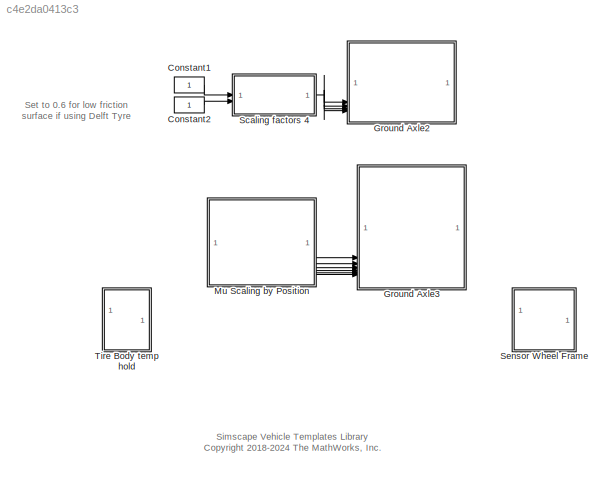
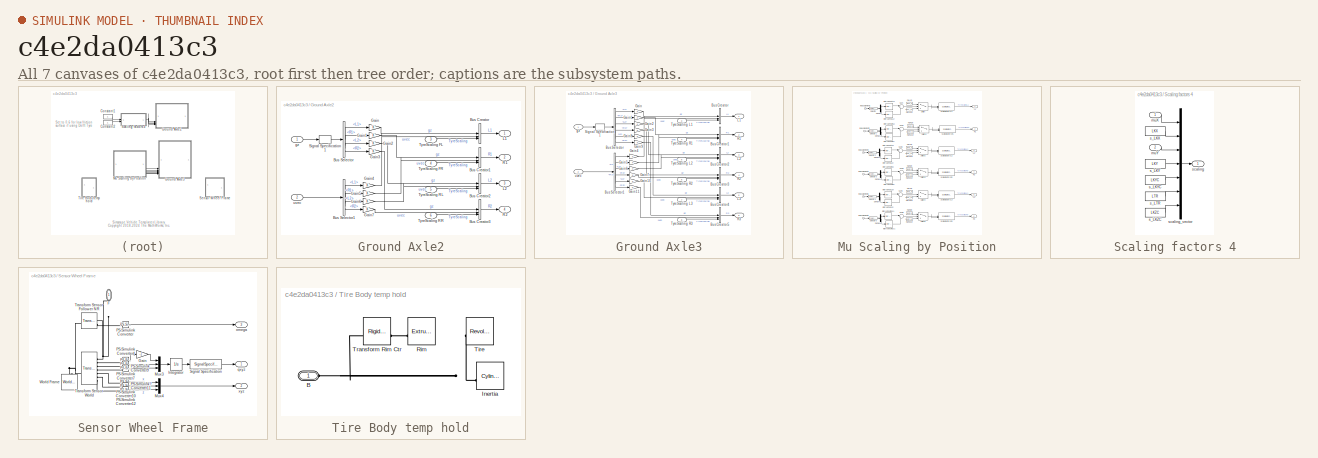
[diagram: thumbnail index - all 7 canvases of the model, root first then tree order]
MODEL slx_c4e2da0413c3
KIND library
CONFIG AbsTol = auto
CONFIG EnableMultiTasking = off
CONFIG FixedStep = auto
CONFIG MaxStep = auto
CONFIG MinStep = auto
CONFIG RelTol = 1e-3
CONFIG SampleTimeConstraint = Unconstrained
CONFIG SolverName = VariableStepAuto
CONFIG StartTime = 0.0
CONFIG StopTime = 10.0
BLOCK [Constant] Constant1
  NameLocation = top
BLOCK [Constant] Constant2
BLOCK [SubSystem] Ground Axle2
BLOCK [BusCreator] Ground Axle2/Bus Creator
  DisplayOption = bar
  InheritFromInputs = on
  Inputs = 3
BLOCK [BusCreator] Ground Axle2/Bus Creator1
  DisplayOption = bar
  InheritFromInputs = on
  Inputs = 3
BLOCK [BusCreator] Ground Axle2/Bus Creator2
  DisplayOption = bar
  InheritFromInputs = on
  Inputs = 3
BLOCK [BusCreator] Ground Axle2/Bus Creator3
  DisplayOption = bar
  InheritFromInputs = on
  Inputs = 3
BLOCK [BusSelector] Ground Axle2/Bus Selector
  OutputSignals = L1,R1,L2,R2
BLOCK [BusSelector] Ground Axle2/Bus Selector1
  OutputSignals = L1,R1,L2,R2
BLOCK [Gain] Ground Axle2/Gain
BLOCK [Gain] Ground Axle2/Gain1
BLOCK [Gain] Ground Axle2/Gain2
BLOCK [Gain] Ground Axle2/Gain3
BLOCK [Gain] Ground Axle2/Gain4
BLOCK [Gain] Ground Axle2/Gain5
BLOCK [Gain] Ground Axle2/Gain6
BLOCK [Gain] Ground Axle2/Gain7
BLOCK [Outport] Ground Axle2/L1
  VectorParamsAs1DForOutWhenUnconnected = off
BLOCK [Outport] Ground Axle2/L2
  Port = 3
  VectorParamsAs1DForOutWhenUnconnected = off
BLOCK [Outport] Ground Axle2/R1
  Port = 2
  VectorParamsAs1DForOutWhenUnconnected = off
BLOCK [Outport] Ground Axle2/R2
  Port = 4
  VectorParamsAs1DForOutWhenUnconnected = off
BLOCK [SignalSpecification] Ground Axle2/Signal Specification1
  Unit = m
BLOCK [Inport] Ground Axle2/TyreScaling FL
  Port = 3
BLOCK [Inport] Ground Axle2/TyreScaling FR
  Port = 4
BLOCK [Inport] Ground Axle2/TyreScaling RL
  Port = 5
BLOCK [Inport] Ground Axle2/TyreScaling RR
  Port = 6
BLOCK [Inport] Ground Axle2/gz
BLOCK [Inport] Ground Axle2/uvec
  Port = 2
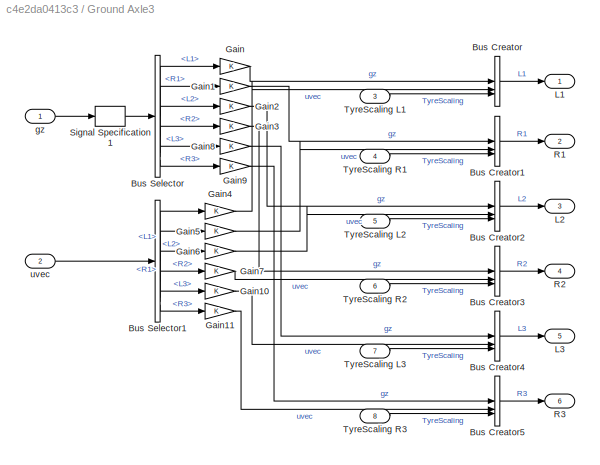
BLOCK [SubSystem] Ground Axle3
BLOCK [BusCreator] Ground Axle3/Bus Creator
  DisplayOption = bar
  InheritFromInputs = on
  Inputs = 3
BLOCK [BusCreator] Ground Axle3/Bus Creator1
  DisplayOption = bar
  InheritFromInputs = on
  Inputs = 3
BLOCK [BusCreator] Ground Axle3/Bus Creator2
  DisplayOption = bar
  InheritFromInputs = on
  Inputs = 3
BLOCK [BusCreator] Ground Axle3/Bus Creator3
  DisplayOption = bar
  InheritFromInputs = on
  Inputs = 3
BLOCK [BusCreator] Ground Axle3/Bus Creator4
  DisplayOption = bar
  InheritFromInputs = on
  Inputs = 3
BLOCK [BusCreator] Ground Axle3/Bus Creator5
  DisplayOption = bar
  InheritFromInputs = on
  Inputs = 3
BLOCK [BusSelector] Ground Axle3/Bus Selector
  OutputSignals = L1,R1,L2,R2,L3,R3
BLOCK [BusSelector] Ground Axle3/Bus Selector1
  OutputSignals = L1,R1,L2,R2,L3,R3
BLOCK [Gain] Ground Axle3/Gain
BLOCK [Gain] Ground Axle3/Gain1
BLOCK [Gain] Ground Axle3/Gain10
BLOCK [Gain] Ground Axle3/Gain11
BLOCK [Gain] Ground Axle3/Gain2
BLOCK [Gain] Ground Axle3/Gain3
BLOCK [Gain] Ground Axle3/Gain4
BLOCK [Gain] Ground Axle3/Gain5
BLOCK [Gain] Ground Axle3/Gain6
BLOCK [Gain] Ground Axle3/Gain7
BLOCK [Gain] Ground Axle3/Gain8
BLOCK [Gain] Ground Axle3/Gain9
BLOCK [Outport] Ground Axle3/L1
  VectorParamsAs1DForOutWhenUnconnected = off
BLOCK [Outport] Ground Axle3/L2
  Port = 3
  VectorParamsAs1DForOutWhenUnconnected = off
BLOCK [Outport] Ground Axle3/L3
  Port = 5
  VectorParamsAs1DForOutWhenUnconnected = off
BLOCK [Outport] Ground Axle3/R1
  Port = 2
  VectorParamsAs1DForOutWhenUnconnected = off
BLOCK [Outport] Ground Axle3/R2
  Port = 4
  VectorParamsAs1DForOutWhenUnconnected = off
BLOCK [Outport] Ground Axle3/R3
  Port = 6
  VectorParamsAs1DForOutWhenUnconnected = off
BLOCK [SignalSpecification] Ground Axle3/Signal Specification1
  Unit = m
BLOCK [Inport] Ground Axle3/TyreScaling L1
  Port = 3
BLOCK [Inport] Ground Axle3/TyreScaling L2
  Port = 5
BLOCK [Inport] Ground Axle3/TyreScaling L3
  Port = 7
BLOCK [Inport] Ground Axle3/TyreScaling R1
  Port = 4
BLOCK [Inport] Ground Axle3/TyreScaling R2
  Port = 6
BLOCK [Inport] Ground Axle3/TyreScaling R3
  Port = 8
BLOCK [Inport] Ground Axle3/gz
BLOCK [Inport] Ground Axle3/uvec
  Port = 2
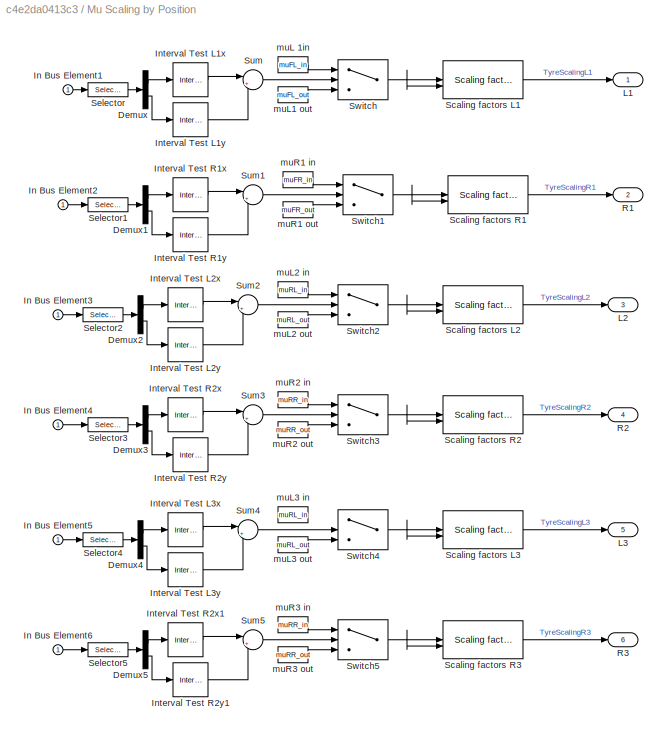
BLOCK [SubSystem] Mu Scaling by Position
BLOCK [Demux] Mu Scaling by Position/Demux
  Outputs = 2
BLOCK [Demux] Mu Scaling by Position/Demux1
  Outputs = 2
BLOCK [Demux] Mu Scaling by Position/Demux2
  Outputs = 2
BLOCK [Demux] Mu Scaling by Position/Demux3
  Outputs = 2
BLOCK [Demux] Mu Scaling by Position/Demux4
  Outputs = 2
BLOCK [Demux] Mu Scaling by Position/Demux5
  Outputs = 2
BLOCK [Inport] Mu Scaling by Position/In Bus Element1
BLOCK [Inport] Mu Scaling by Position/In Bus Element2
BLOCK [Inport] Mu Scaling by Position/In Bus Element3
BLOCK [Inport] Mu Scaling by Position/In Bus Element4
BLOCK [Inport] Mu Scaling by Position/In Bus Element5
BLOCK [Inport] Mu Scaling by Position/In Bus Element6
BLOCK [Reference] Mu Scaling by Position/Interval Test L1x  REF=simulink/Logic and Bit
Operations/Interval Test
  NameLocation = top
  SourceBlock = simulink/Logic and Bit\nOperations/Interval Test
  SourceType = Interval Test
BLOCK [Reference] Mu Scaling by Position/Interval Test L1y  REF=simulink/Logic and Bit
Operations/Interval Test
  SourceBlock = simulink/Logic and Bit\nOperations/Interval Test
  SourceType = Interval Test
BLOCK [Reference] Mu Scaling by Position/Interval Test L2x  REF=simulink/Logic and Bit
Operations/Interval Test
  NameLocation = top
  SourceBlock = simulink/Logic and Bit\nOperations/Interval Test
  SourceType = Interval Test
BLOCK [Reference] Mu Scaling by Position/Interval Test L2y  REF=simulink/Logic and Bit
Operations/Interval Test
  SourceBlock = simulink/Logic and Bit\nOperations/Interval Test
  SourceType = Interval Test
BLOCK [Reference] Mu Scaling by Position/Interval Test L3x  REF=simulink/Logic and Bit
Operations/Interval Test
  NameLocation = top
  SourceBlock = simulink/Logic and Bit\nOperations/Interval Test
  SourceType = Interval Test
BLOCK [Reference] Mu Scaling by Position/Interval Test L3y  REF=simulink/Logic and Bit
Operations/Interval Test
  SourceBlock = simulink/Logic and Bit\nOperations/Interval Test
  SourceType = Interval Test
BLOCK [Reference] Mu Scaling by Position/Interval Test R1x  REF=simulink/Logic and Bit
Operations/Interval Test
  NameLocation = top
  SourceBlock = simulink/Logic and Bit\nOperations/Interval Test
  SourceType = Interval Test
BLOCK [Reference] Mu Scaling by Position/Interval Test R1y  REF=simulink/Logic and Bit
Operations/Interval Test
  SourceBlock = simulink/Logic and Bit\nOperations/Interval Test
  SourceType = Interval Test
BLOCK [Reference] Mu Scaling by Position/Interval Test R2x  REF=simulink/Logic and Bit
Operations/Interval Test
  NameLocation = top
  SourceBlock = simulink/Logic and Bit\nOperations/Interval Test
  SourceType = Interval Test
BLOCK [Reference] Mu Scaling by Position/Interval Test R2x1  REF=simulink/Logic and Bit
Operations/Interval Test
  NameLocation = top
  SourceBlock = simulink/Logic and Bit\nOperations/Interval Test
  SourceType = Interval Test
BLOCK [Reference] Mu Scaling by Position/Interval Test R2y  REF=simulink/Logic and Bit
Operations/Interval Test
  SourceBlock = simulink/Logic and Bit\nOperations/Interval Test
  SourceType = Interval Test
BLOCK [Reference] Mu Scaling by Position/Interval Test R2y1  REF=simulink/Logic and Bit
Operations/Interval Test
  SourceBlock = simulink/Logic and Bit\nOperations/Interval Test
  SourceType = Interval Test
BLOCK [Outport] Mu Scaling by Position/L1
  VectorParamsAs1DForOutWhenUnconnected = off
BLOCK [Outport] Mu Scaling by Position/L2
  Port = 3
  VectorParamsAs1DForOutWhenUnconnected = off
BLOCK [Outport] Mu Scaling by Position/L3
  Port = 5
  VectorParamsAs1DForOutWhenUnconnected = off
BLOCK [Outport] Mu Scaling by Position/R1
  Port = 2
  VectorParamsAs1DForOutWhenUnconnected = off
BLOCK [Outport] Mu Scaling by Position/R2
  Port = 4
  VectorParamsAs1DForOutWhenUnconnected = off
BLOCK [Outport] Mu Scaling by Position/R3
  Port = 6
  VectorParamsAs1DForOutWhenUnconnected = off
BLOCK [Reference] Mu Scaling by Position/Scaling factors L1  REF=$bdroot/Scaling factors 4
  SourceBlock = $bdroot/Scaling factors 4
BLOCK [Reference] Mu Scaling by Position/Scaling factors L2  REF=$bdroot/Scaling factors 4
  SourceBlock = $bdroot/Scaling factors 4
BLOCK [Reference] Mu Scaling by Position/Scaling factors L3  REF=$bdroot/Scaling factors 4
  SourceBlock = $bdroot/Scaling factors 4
BLOCK [Reference] Mu Scaling by Position/Scaling factors R1  REF=$bdroot/Scaling factors 4
  SourceBlock = $bdroot/Scaling factors 4
BLOCK [Reference] Mu Scaling by Position/Scaling factors R2  REF=$bdroot/Scaling factors 4
  SourceBlock = $bdroot/Scaling factors 4
BLOCK [Reference] Mu Scaling by Position/Scaling factors R3  REF=$bdroot/Scaling factors 4
  SourceBlock = $bdroot/Scaling factors 4
BLOCK [Selector] Mu Scaling by Position/Selector
  IndexOptions = Index vector (dialog)
  Indices = [1 2]
  InputPortWidth = 3
  OutputSizes = 1
BLOCK [Selector] Mu Scaling by Position/Selector1
  IndexOptions = Index vector (dialog)
  Indices = [1 2]
  InputPortWidth = 3
  OutputSizes = 1
BLOCK [Selector] Mu Scaling by Position/Selector2
  IndexOptions = Index vector (dialog)
  Indices = [1 2]
  InputPortWidth = 3
  OutputSizes = 1
BLOCK [Selector] Mu Scaling by Position/Selector3
  IndexOptions = Index vector (dialog)
  Indices = [1 2]
  InputPortWidth = 3
  OutputSizes = 1
BLOCK [Selector] Mu Scaling by Position/Selector4
  IndexOptions = Index vector (dialog)
  Indices = [1 2]
  InputPortWidth = 3
  OutputSizes = 1
BLOCK [Selector] Mu Scaling by Position/Selector5
  IndexOptions = Index vector (dialog)
  Indices = [1 2]
  InputPortWidth = 3
  OutputSizes = 1
BLOCK [Sum] Mu Scaling by Position/Sum
  Inputs = |++
BLOCK [Sum] Mu Scaling by Position/Sum1
  Inputs = |++
BLOCK [Sum] Mu Scaling by Position/Sum2
  Inputs = |++
BLOCK [Sum] Mu Scaling by Position/Sum3
  Inputs = |++
BLOCK [Sum] Mu Scaling by Position/Sum4
  Inputs = |++
BLOCK [Sum] Mu Scaling by Position/Sum5
  Inputs = |++
BLOCK [Switch] Mu Scaling by Position/Switch
  Criteria = u2 > Threshold
  InputSameDT = off
  SaturateOnIntegerOverflow = off
  Threshold = 1
  ZeroCross = off
BLOCK [Switch] Mu Scaling by Position/Switch1
  Criteria = u2 > Threshold
  InputSameDT = off
  SaturateOnIntegerOverflow = off
  Threshold = 1
BLOCK [Switch] Mu Scaling by Position/Switch2
  Criteria = u2 > Threshold
  InputSameDT = off
  SaturateOnIntegerOverflow = off
  Threshold = 1
BLOCK [Switch] Mu Scaling by Position/Switch3
  Criteria = u2 > Threshold
  InputSameDT = off
  SaturateOnIntegerOverflow = off
  Threshold = 1
BLOCK [Switch] Mu Scaling by Position/Switch4
  Criteria = u2 > Threshold
  InputSameDT = off
  SaturateOnIntegerOverflow = off
  Threshold = 1
BLOCK [Switch] Mu Scaling by Position/Switch5
  Criteria = u2 > Threshold
  InputSameDT = off
  SaturateOnIntegerOverflow = off
  Threshold = 1
BLOCK [Constant] Mu Scaling by Position/muL 1in
  NameLocation = top
  Value = muFL_in
BLOCK [Constant] Mu Scaling by Position/muL1 out
  Value = muFL_out
BLOCK [Constant] Mu Scaling by Position/muL2 in
  NameLocation = top
  Value = muRL_in
BLOCK [Constant] Mu Scaling by Position/muL2 out
  Value = muRL_out
BLOCK [Constant] Mu Scaling by Position/muL3 in
  NameLocation = top
  Value = muRL_in
BLOCK [Constant] Mu Scaling by Position/muL3 out
  Value = muRL_out
BLOCK [Constant] Mu Scaling by Position/muR1 in
  NameLocation = top
  Value = muFR_in
BLOCK [Constant] Mu Scaling by Position/muR1 out
  Value = muFR_out
BLOCK [Constant] Mu Scaling by Position/muR2 in
  NameLocation = top
  Value = muRR_in
BLOCK [Constant] Mu Scaling by Position/muR2 out
  Value = muRR_out
BLOCK [Constant] Mu Scaling by Position/muR3 in
  NameLocation = top
  Value = muRR_in
BLOCK [Constant] Mu Scaling by Position/muR3 out
  Value = muRR_out
BLOCK [SubSystem] Scaling factors 4
BLOCK [Inport] Scaling factors 4/muX
BLOCK [Inport] Scaling factors 4/muY
  Port = 2
BLOCK [Constant] Scaling factors 4/s_LKX
  Value = LKX
BLOCK [Constant] Scaling factors 4/s_LKY
  Value = LKY
BLOCK [Constant] Scaling factors 4/s_LKYC
  Value = LKYC
BLOCK [Constant] Scaling factors 4/s_LKZC
  Value = LKZC
BLOCK [Constant] Scaling factors 4/s_LTR
  Value = LTR
BLOCK [Outport] Scaling factors 4/scaling
  VectorParamsAs1DForOutWhenUnconnected = off
BLOCK [Mux] Scaling factors 4/scaling_vector
  DisplayOption = bar
  Inputs = 7
BLOCK [SubSystem] Sensor Wheel Frame
BLOCK [PMIOPort] Sensor Wheel Frame/F
  NameLocation = left
  Side = Left
BLOCK [Gain] Sensor Wheel Frame/Gain
  Gain = -1
  NameLocation = top
BLOCK [Integrator] Sensor Wheel Frame/Integrator
  WrappedStateLowerValue = 0
  WrappedStateUpperValue = 2*pi
BLOCK [Mux] Sensor Wheel Frame/Mux3
  DisplayOption = bar
  Inputs = 3
BLOCK [Mux] Sensor Wheel Frame/Mux4
  DisplayOption = bar
  Inputs = 3
BLOCK [Reference] Sensor Wheel Frame/PS-Simulink Converter  REF=nesl_utility/PS-Simulink
Converter
  SourceBlock = nesl_utility/PS-Simulink\nConverter
  SourceType = PS-Simulink\nConverter
BLOCK [Reference] Sensor Wheel Frame/PS-Simulink Converter10  REF=nesl_utility/PS-Simulink
Converter
  SourceBlock = nesl_utility/PS-Simulink\nConverter
  SourceType = PS-Simulink\nConverter
BLOCK [Reference] Sensor Wheel Frame/PS-Simulink Converter11  REF=nesl_utility/PS-Simulink
Converter
  SourceBlock = nesl_utility/PS-Simulink\nConverter
  SourceType = PS-Simulink\nConverter
BLOCK [Reference] Sensor Wheel Frame/PS-Simulink Converter12  REF=nesl_utility/PS-Simulink
Converter
  SourceBlock = nesl_utility/PS-Simulink\nConverter
  SourceType = PS-Simulink\nConverter
BLOCK [Reference] Sensor Wheel Frame/PS-Simulink Converter4  REF=nesl_utility/PS-Simulink
Converter
  SourceBlock = nesl_utility/PS-Simulink\nConverter
  SourceType = PS-Simulink\nConverter
BLOCK [Reference] Sensor Wheel Frame/PS-Simulink Converter7  REF=nesl_utility/PS-Simulink
Converter
  SourceBlock = nesl_utility/PS-Simulink\nConverter
  SourceType = PS-Simulink\nConverter
BLOCK [Reference] Sensor Wheel Frame/PS-Simulink Converter9  REF=nesl_utility/PS-Simulink
Converter
  SourceBlock = nesl_utility/PS-Simulink\nConverter
  SourceType = PS-Simulink\nConverter
BLOCK [SignalSpecification] Sensor Wheel Frame/Signal Specification
  Unit = rad
BLOCK [Reference] Sensor Wheel Frame/Transform Sensor Follower NR  REF=sm_lib/Frames and
Transforms/Transform
Sensor
  SourceBlock = sm_lib/Frames and\nTransforms/Transform\nSensor
  SourceType = Transform\nSensor
BLOCK [Reference] Sensor Wheel Frame/Transform Sensor World  REF=sm_lib/Frames and
Transforms/Transform
Sensor
  SourceBlock = sm_lib/Frames and\nTransforms/Transform\nSensor
  SourceType = Transform\nSensor
BLOCK [Reference] Sensor Wheel Frame/World Frame  REF=sm_lib/Frames and
Transforms/World Frame
  NameLocation = right
  SourceBlock = sm_lib/Frames and\nTransforms/World Frame
  SourceType = World Frame
BLOCK [Outport] Sensor Wheel Frame/omega
  Port = 3
  VectorParamsAs1DForOutWhenUnconnected = off
BLOCK [Outport] Sensor Wheel Frame/qxyz
  VectorParamsAs1DForOutWhenUnconnected = off
BLOCK [Outport] Sensor Wheel Frame/xyz
  Port = 2
  VectorParamsAs1DForOutWhenUnconnected = off
BLOCK [SubSystem] Tire Body temp hold
BLOCK [PMIOPort] Tire Body temp hold/B
  Side = Left
BLOCK [Reference] Tire Body temp hold/Inertia  REF=sm_lib/Body Elements/Cylindrical Solid
  SourceBlock = sm_lib/Body Elements/Cylindrical Solid
  SourceType = Cylindrical Solid
BLOCK [Reference] Tire Body temp hold/Rim  REF=sm_lib/Body Elements/Extruded Solid
  SourceBlock = sm_lib/Body Elements/Extruded Solid
  SourceType = Extruded Solid
BLOCK [Reference] Tire Body temp hold/Tire  REF=sm_lib/Body Elements/Revolved Solid
  SourceBlock = sm_lib/Body Elements/Revolved Solid
  SourceType = Revolved Solid
BLOCK [Reference] Tire Body temp hold/Transform Rim Ctr  REF=sm_lib/Frames and
Transforms/Rigid
Transform
  SourceBlock = sm_lib/Frames and\nTransforms/Rigid\nTransform
  SourceType = Rigid\nTransform
ANNOTATION (root): Set to 0.6 for low friction surface if using Delft Tyre
ANNOTATION (root): Simscape Vehicle Templates Library <copyright redacted>
LINE Constant1:1 -> Scaling factors 4:1
LINE Constant2:1 -> Scaling factors 4:2
LINE Ground Axle2/Bus Creator1:1 -> Ground Axle2/R1:1
LINE Ground Axle2/Bus Creator2:1 -> Ground Axle2/L2:1
LINE Ground Axle2/Bus Creator3:1 -> Ground Axle2/R2:1
LINE Ground Axle2/Bus Creator:1 -> Ground Axle2/L1:1
LINE Ground Axle2/Bus Selector1:1 -> Ground Axle2/Gain4:1
LINE Ground Axle2/Bus Selector1:2 -> Ground Axle2/Gain5:1
LINE Ground Axle2/Bus Selector1:3 -> Ground Axle2/Gain6:1
LINE Ground Axle2/Bus Selector1:4 -> Ground Axle2/Gain7:1
LINE Ground Axle2/Bus Selector:1 -> Ground Axle2/Gain:1
LINE Ground Axle2/Bus Selector:2 -> Ground Axle2/Gain1:1
LINE Ground Axle2/Bus Selector:3 -> Ground Axle2/Gain2:1
LINE Ground Axle2/Bus Selector:4 -> Ground Axle2/Gain3:1
LINE Ground Axle2/Gain1:1 -> Ground Axle2/Bus Creator1:1
LINE Ground Axle2/Gain2:1 -> Ground Axle2/Bus Creator2:1
LINE Ground Axle2/Gain3:1 -> Ground Axle2/Bus Creator3:1
LINE Ground Axle2/Gain4:1 -> Ground Axle2/Bus Creator:2
LINE Ground Axle2/Gain5:1 -> Ground Axle2/Bus Creator1:2
LINE Ground Axle2/Gain6:1 -> Ground Axle2/Bus Creator2:2
LINE Ground Axle2/Gain7:1 -> Ground Axle2/Bus Creator3:2
LINE Ground Axle2/Gain:1 -> Ground Axle2/Bus Creator:1
LINE Ground Axle2/Signal Specification1:1 -> Ground Axle2/Bus Selector:1
LINE Ground Axle2/TyreScaling FL:1 -> Ground Axle2/Bus Creator:3
LINE Ground Axle2/TyreScaling FR:1 -> Ground Axle2/Bus Creator1:3
LINE Ground Axle2/TyreScaling RL:1 -> Ground Axle2/Bus Creator2:3
LINE Ground Axle2/TyreScaling RR:1 -> Ground Axle2/Bus Creator3:3
LINE Ground Axle2/gz:1 -> Ground Axle2/Signal Specification1:1
LINE Ground Axle2/uvec:1 -> Ground Axle2/Bus Selector1:1
LINE Ground Axle3/Bus Creator1:1 -> Ground Axle3/R1:1
LINE Ground Axle3/Bus Creator2:1 -> Ground Axle3/L2:1
LINE Ground Axle3/Bus Creator3:1 -> Ground Axle3/R2:1
LINE Ground Axle3/Bus Creator4:1 -> Ground Axle3/L3:1
LINE Ground Axle3/Bus Creator5:1 -> Ground Axle3/R3:1
LINE Ground Axle3/Bus Creator:1 -> Ground Axle3/L1:1
LINE Ground Axle3/Bus Selector1:1 -> Ground Axle3/Gain4:1
LINE Ground Axle3/Bus Selector1:2 -> Ground Axle3/Gain5:1
LINE Ground Axle3/Bus Selector1:3 -> Ground Axle3/Gain6:1
LINE Ground Axle3/Bus Selector1:4 -> Ground Axle3/Gain7:1
LINE Ground Axle3/Bus Selector1:5 -> Ground Axle3/Gain10:1
LINE Ground Axle3/Bus Selector1:6 -> Ground Axle3/Gain11:1
LINE Ground Axle3/Bus Selector:1 -> Ground Axle3/Gain:1
LINE Ground Axle3/Bus Selector:2 -> Ground Axle3/Gain1:1
LINE Ground Axle3/Bus Selector:3 -> Ground Axle3/Gain2:1
LINE Ground Axle3/Bus Selector:4 -> Ground Axle3/Gain3:1
LINE Ground Axle3/Bus Selector:5 -> Ground Axle3/Gain8:1
LINE Ground Axle3/Bus Selector:6 -> Ground Axle3/Gain9:1
LINE Ground Axle3/Gain10:1 -> Ground Axle3/Bus Creator4:2
LINE Ground Axle3/Gain11:1 -> Ground Axle3/Bus Creator5:2
LINE Ground Axle3/Gain1:1 -> Ground Axle3/Bus Creator1:1
LINE Ground Axle3/Gain2:1 -> Ground Axle3/Bus Creator2:1
LINE Ground Axle3/Gain3:1 -> Ground Axle3/Bus Creator3:1
LINE Ground Axle3/Gain4:1 -> Ground Axle3/Bus Creator:2
LINE Ground Axle3/Gain5:1 -> Ground Axle3/Bus Creator1:2
LINE Ground Axle3/Gain6:1 -> Ground Axle3/Bus Creator2:2
LINE Ground Axle3/Gain7:1 -> Ground Axle3/Bus Creator3:2
LINE Ground Axle3/Gain8:1 -> Ground Axle3/Bus Creator4:1
LINE Ground Axle3/Gain9:1 -> Ground Axle3/Bus Creator5:1
LINE Ground Axle3/Gain:1 -> Ground Axle3/Bus Creator:1
LINE Ground Axle3/Signal Specification1:1 -> Ground Axle3/Bus Selector:1
LINE Ground Axle3/TyreScaling L1:1 -> Ground Axle3/Bus Creator:3
LINE Ground Axle3/TyreScaling L2:1 -> Ground Axle3/Bus Creator2:3
LINE Ground Axle3/TyreScaling L3:1 -> Ground Axle3/Bus Creator4:3
LINE Ground Axle3/TyreScaling R1:1 -> Ground Axle3/Bus Creator1:3
LINE Ground Axle3/TyreScaling R2:1 -> Ground Axle3/Bus Creator3:3
LINE Ground Axle3/TyreScaling R3:1 -> Ground Axle3/Bus Creator5:3
LINE Ground Axle3/gz:1 -> Ground Axle3/Signal Specification1:1
LINE Ground Axle3/uvec:1 -> Ground Axle3/Bus Selector1:1
LINE Mu Scaling by Position/Demux1:1 -> Mu Scaling by Position/Interval Test R1x:1
LINE Mu Scaling by Position/Demux1:2 -> Mu Scaling by Position/Interval Test R1y:1
LINE Mu Scaling by Position/Demux2:1 -> Mu Scaling by Position/Interval Test L2x:1
LINE Mu Scaling by Position/Demux2:2 -> Mu Scaling by Position/Interval Test L2y:1
LINE Mu Scaling by Position/Demux3:1 -> Mu Scaling by Position/Interval Test R2x:1
LINE Mu Scaling by Position/Demux3:2 -> Mu Scaling by Position/Interval Test R2y:1
LINE Mu Scaling by Position/Demux4:1 -> Mu Scaling by Position/Interval Test L3x:1
LINE Mu Scaling by Position/Demux4:2 -> Mu Scaling by Position/Interval Test L3y:1
LINE Mu Scaling by Position/Demux5:1 -> Mu Scaling by Position/Interval Test R2x1:1
LINE Mu Scaling by Position/Demux5:2 -> Mu Scaling by Position/Interval Test R2y1:1
LINE Mu Scaling by Position/Demux:1 -> Mu Scaling by Position/Interval Test L1x:1
LINE Mu Scaling by Position/Demux:2 -> Mu Scaling by Position/Interval Test L1y:1
LINE Mu Scaling by Position/In Bus Element1:1 -> Mu Scaling by Position/Selector:1
LINE Mu Scaling by Position/In Bus Element2:1 -> Mu Scaling by Position/Selector1:1
LINE Mu Scaling by Position/In Bus Element3:1 -> Mu Scaling by Position/Selector2:1
LINE Mu Scaling by Position/In Bus Element4:1 -> Mu Scaling by Position/Selector3:1
LINE Mu Scaling by Position/In Bus Element5:1 -> Mu Scaling by Position/Selector4:1
LINE Mu Scaling by Position/In Bus Element6:1 -> Mu Scaling by Position/Selector5:1
LINE Mu Scaling by Position/Interval Test L1x:1 -> Mu Scaling by Position/Sum:1
LINE Mu Scaling by Position/Interval Test L1y:1 -> Mu Scaling by Position/Sum:2
LINE Mu Scaling by Position/Interval Test L2x:1 -> Mu Scaling by Position/Sum2:1
LINE Mu Scaling by Position/Interval Test L2y:1 -> Mu Scaling by Position/Sum2:2
LINE Mu Scaling by Position/Interval Test L3x:1 -> Mu Scaling by Position/Sum4:1
LINE Mu Scaling by Position/Interval Test L3y:1 -> Mu Scaling by Position/Sum4:2
LINE Mu Scaling by Position/Interval Test R1x:1 -> Mu Scaling by Position/Sum1:1
LINE Mu Scaling by Position/Interval Test R1y:1 -> Mu Scaling by Position/Sum1:2
LINE Mu Scaling by Position/Interval Test R2x1:1 -> Mu Scaling by Position/Sum5:1
LINE Mu Scaling by Position/Interval Test R2x:1 -> Mu Scaling by Position/Sum3:1
LINE Mu Scaling by Position/Interval Test R2y1:1 -> Mu Scaling by Position/Sum5:2
LINE Mu Scaling by Position/Interval Test R2y:1 -> Mu Scaling by Position/Sum3:2
LINE Mu Scaling by Position/Scaling factors L1:1 -> Mu Scaling by Position/L1:1
LINE Mu Scaling by Position/Scaling factors L2:1 -> Mu Scaling by Position/L2:1
LINE Mu Scaling by Position/Scaling factors L3:1 -> Mu Scaling by Position/L3:1
LINE Mu Scaling by Position/Scaling factors R1:1 -> Mu Scaling by Position/R1:1
LINE Mu Scaling by Position/Scaling factors R2:1 -> Mu Scaling by Position/R2:1
LINE Mu Scaling by Position/Scaling factors R3:1 -> Mu Scaling by Position/R3:1
LINE Mu Scaling by Position/Selector1:1 -> Mu Scaling by Position/Demux1:1
LINE Mu Scaling by Position/Selector2:1 -> Mu Scaling by Position/Demux2:1
LINE Mu Scaling by Position/Selector3:1 -> Mu Scaling by Position/Demux3:1
LINE Mu Scaling by Position/Selector4:1 -> Mu Scaling by Position/Demux4:1
LINE Mu Scaling by Position/Selector5:1 -> Mu Scaling by Position/Demux5:1
LINE Mu Scaling by Position/Selector:1 -> Mu Scaling by Position/Demux:1
LINE Mu Scaling by Position/Sum1:1 -> Mu Scaling by Position/Switch1:2
LINE Mu Scaling by Position/Sum2:1 -> Mu Scaling by Position/Switch2:2
LINE Mu Scaling by Position/Sum3:1 -> Mu Scaling by Position/Switch3:2
LINE Mu Scaling by Position/Sum4:1 -> Mu Scaling by Position/Switch4:2
LINE Mu Scaling by Position/Sum5:1 -> Mu Scaling by Position/Switch5:2
LINE Mu Scaling by Position/Sum:1 -> Mu Scaling by Position/Switch:2
NET Mu Scaling by Position/Switch1:1 -> Mu Scaling by Position/Scaling factors R1:1, Mu Scaling by Position/Scaling factors R1:2
NET Mu Scaling by Position/Switch2:1 -> Mu Scaling by Position/Scaling factors L2:1, Mu Scaling by Position/Scaling factors L2:2
NET Mu Scaling by Position/Switch3:1 -> Mu Scaling by Position/Scaling factors R2:1, Mu Scaling by Position/Scaling factors R2:2
NET Mu Scaling by Position/Switch4:1 -> Mu Scaling by Position/Scaling factors L3:1, Mu Scaling by Position/Scaling factors L3:2
NET Mu Scaling by Position/Switch5:1 -> Mu Scaling by Position/Scaling factors R3:1, Mu Scaling by Position/Scaling factors R3:2
NET Mu Scaling by Position/Switch:1 -> Mu Scaling by Position/Scaling factors L1:1, Mu Scaling by Position/Scaling factors L1:2
LINE Mu Scaling by Position/muL 1in:1 -> Mu Scaling by Position/Switch:1
LINE Mu Scaling by Position/muL1 out:1 -> Mu Scaling by Position/Switch:3
LINE Mu Scaling by Position/muL2 in:1 -> Mu Scaling by Position/Switch2:1
LINE Mu Scaling by Position/muL2 out:1 -> Mu Scaling by Position/Switch2:3
LINE Mu Scaling by Position/muL3 out:1 -> Mu Scaling by Position/Switch4:3
LINE Mu Scaling by Position/muR1 in:1 -> Mu Scaling by Position/Switch1:1
LINE Mu Scaling by Position/muR1 out:1 -> Mu Scaling by Position/Switch1:3
LINE Mu Scaling by Position/muR2 in:1 -> Mu Scaling by Position/Switch3:1
LINE Mu Scaling by Position/muR2 out:1 -> Mu Scaling by Position/Switch3:3
LINE Mu Scaling by Position/muR3 in:1 -> Mu Scaling by Position/Switch5:1
LINE Mu Scaling by Position/muR3 out:1 -> Mu Scaling by Position/Switch5:3
LINE Mu Scaling by Position:1 -> Ground Axle3:3
LINE Mu Scaling by Position:2 -> Ground Axle3:4
LINE Mu Scaling by Position:3 -> Ground Axle3:5
LINE Mu Scaling by Position:4 -> Ground Axle3:6
LINE Mu Scaling by Position:5 -> Ground Axle3:7
LINE Mu Scaling by Position:6 -> Ground Axle3:8
LINE Scaling factors 4/muX:1 -> Scaling factors 4/scaling_vector:1
LINE Scaling factors 4/muY:1 -> Scaling factors 4/scaling_vector:3
LINE Scaling factors 4/s_LKX:1 -> Scaling factors 4/scaling_vector:2
LINE Scaling factors 4/s_LKY:1 -> Scaling factors 4/scaling_vector:4
LINE Scaling factors 4/s_LKYC:1 -> Scaling factors 4/scaling_vector:5
LINE Scaling factors 4/s_LKZC:1 -> Scaling factors 4/scaling_vector:7
LINE Scaling factors 4/s_LTR:1 -> Scaling factors 4/scaling_vector:6
LINE Scaling factors 4/scaling_vector:1 -> Scaling factors 4/scaling:1
NET Scaling factors 4:1 -> Ground Axle2:3, Ground Axle2:4, Ground Axle2:5, Ground Axle2:6
LINE Sensor Wheel Frame/Gain:1 -> Sensor Wheel Frame/Mux3:1
LINE Sensor Wheel Frame/Integrator:1 -> Sensor Wheel Frame/Signal Specification:1
LINE Sensor Wheel Frame/Mux3:1 -> Sensor Wheel Frame/Integrator:1
LINE Sensor Wheel Frame/Mux4:1 -> Sensor Wheel Frame/xyz:1
LINE Sensor Wheel Frame/PS-Simulink Converter10:1 -> Sensor Wheel Frame/Mux4:1
LINE Sensor Wheel Frame/PS-Simulink Converter11:1 -> Sensor Wheel Frame/Mux4:2
LINE Sensor Wheel Frame/PS-Simulink Converter12:1 -> Sensor Wheel Frame/Mux4:3
LINE Sensor Wheel Frame/PS-Simulink Converter4:1 -> Sensor Wheel Frame/Gain:1
LINE Sensor Wheel Frame/PS-Simulink Converter7:1 -> Sensor Wheel Frame/Mux3:2
LINE Sensor Wheel Frame/PS-Simulink Converter9:1 -> Sensor Wheel Frame/Mux3:3
LINE Sensor Wheel Frame/PS-Simulink Converter:1 -> Sensor Wheel Frame/omega:1
LINE Sensor Wheel Frame/Signal Specification:1 -> Sensor Wheel Frame/qxyz:1
PNET net1: Sensor Wheel Frame/F:RConn1 -- Sensor Wheel Frame/Transform Sensor Follower NR:RConn1 -- Sensor Wheel Frame/Transform Sensor World:RConn1
PLINE Sensor Wheel Frame/PS-Simulink Converter10:LConn1 -- Sensor Wheel Frame/Transform Sensor World:RConn5
PLINE Sensor Wheel Frame/PS-Simulink Converter11:LConn1 -- Sensor Wheel Frame/Transform Sensor World:RConn6
PLINE Sensor Wheel Frame/PS-Simulink Converter12:LConn1 -- Sensor Wheel Frame/Transform Sensor World:RConn7
PLINE Sensor Wheel Frame/PS-Simulink Converter4:LConn1 -- Sensor Wheel Frame/Transform Sensor World:RConn2
PLINE Sensor Wheel Frame/PS-Simulink Converter7:LConn1 -- Sensor Wheel Frame/Transform Sensor World:RConn3
PLINE Sensor Wheel Frame/PS-Simulink Converter9:LConn1 -- Sensor Wheel Frame/Transform Sensor World:RConn4
PLINE Sensor Wheel Frame/PS-Simulink Converter:LConn1 -- Sensor Wheel Frame/Transform Sensor Follower NR:RConn2
PNET net2: Sensor Wheel Frame/Transform Sensor Follower NR:LConn1 -- Sensor Wheel Frame/Transform Sensor World:LConn1 -- Sensor Wheel Frame/World Frame:RConn1
PNET net3: Tire Body temp hold/B:RConn1 -- Tire Body temp hold/Inertia:RConn1 -- Tire Body temp hold/Tire:RConn1 -- Tire Body temp hold/Transform Rim Ctr:LConn1
PLINE Tire Body temp hold/Rim:RConn1 -- Tire Body temp hold/Transform Rim Ctr:RConn1
note: NET lines group one-source signal fan-out (src -> all destinations, sorted); 1:1 wires keep LINE; PNET lines group multi-terminal physical nets as a canonical sorted terminal list (undirected conserving connections); 2-terminal nets keep the pairwise PLINE form
